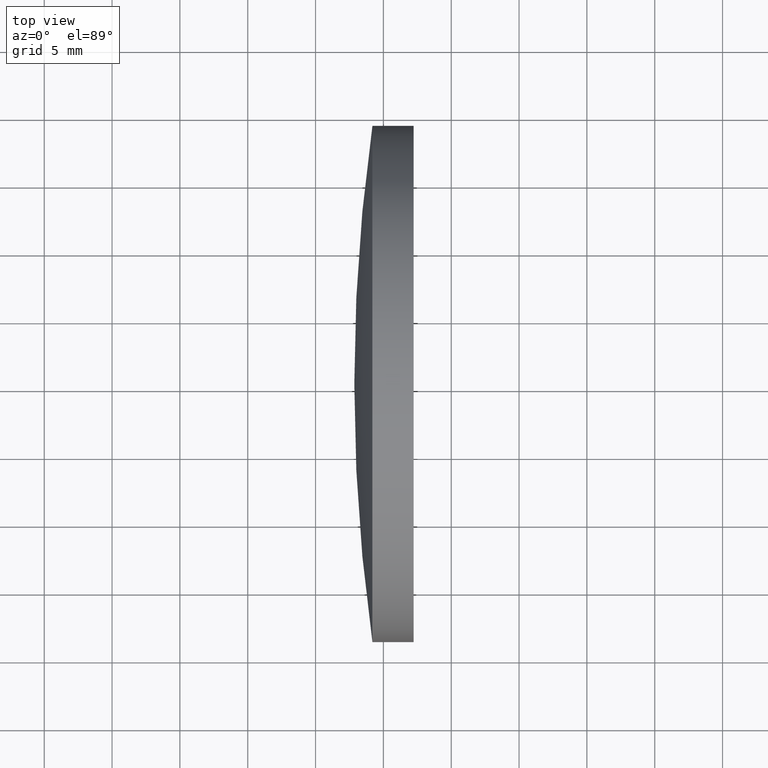
[diagram: clean part render]
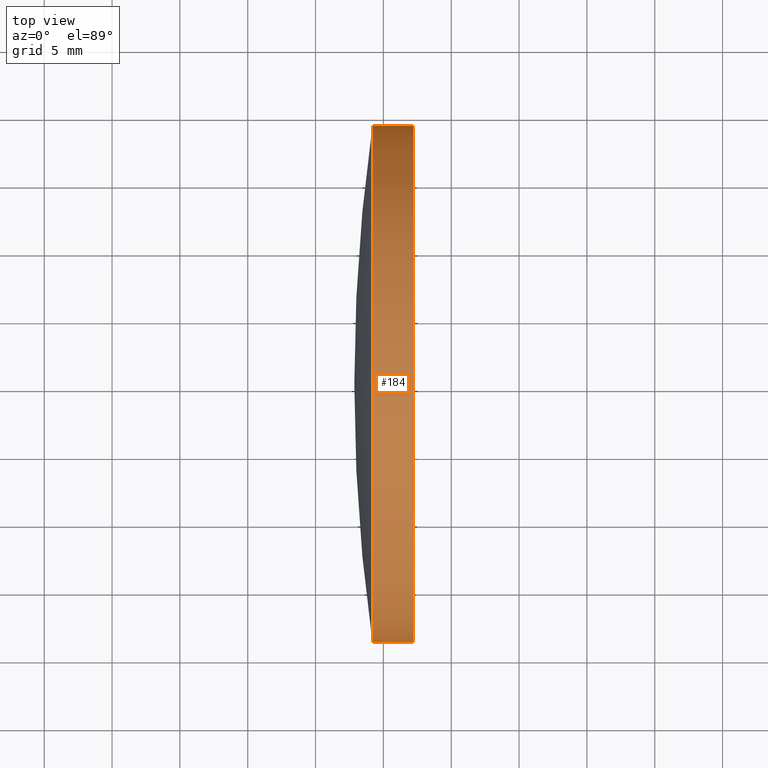
[diagram: same view with one face highlighted and labeled with its STEP entity id]
A machine part, top view. The second image highlights one B-rep face of the part: STEP entity #184.
In plain terms, the highlighted cylindrical surface (partial cylindrical patch) has radius 19.025 mm, axis along (-1, -0, -0).
Its self-contained STEP definition (entity closure, byte-faithful):
#7 = VECTOR ( 'NONE', #172, 1000.000000000000000 ) ;
#16 = DIRECTION ( 'NONE',  ( -1.000000000000000000, -6.937607244762875000E-016, -0.0000000000000000000 ) ) ;
#17 = ORIENTED_EDGE ( 'NONE', *, *, #81, .T. ) ;
#20 = ORIENTED_EDGE ( 'NONE', *, *, #105, .F. ) ;
#33 = EDGE_LOOP ( 'NONE', ( #150, #17, #151, #20 ) ) ;
#45 = AXIS2_PLACEMENT_3D ( 'NONE', #180, #160, #112 ) ;
#51 = CARTESIAN_POINT ( 'NONE',  ( 115.9444912979631700, 65.21684047094032600, 0.0000000000000000000 ) ) ;
#59 = CIRCLE ( 'NONE', #45, 19.02500000000002000 ) ;
#61 = VERTEX_POINT ( 'NONE', #186 ) ;
#65 = CARTESIAN_POINT ( 'NONE',  ( 115.9444912979631500, 84.24184047094033200, 2.329890535377840300E-015 ) ) ;
#71 = VERTEX_POINT ( 'NONE', #120 ) ;
#72 = CARTESIAN_POINT ( 'NONE',  ( 124.1897242847917800, 46.19184047094033500, 0.0000000000000000000 ) ) ;
#74 = DIRECTION ( 'NONE',  ( 7.294500818824946100E-016, -1.000000000000000000, 0.0000000000000000000 ) ) ;
#76 = AXIS2_PLACEMENT_3D ( 'NONE', #126, #16, #74 ) ;
#81 = EDGE_CURVE ( 'NONE', #61, #71, #135, .T. ) ;
#89 = CYLINDRICAL_SURFACE ( 'NONE', #147, 19.02500000000000600 ) ;
#91 = FACE_OUTER_BOUND ( 'NONE', #33, .T. ) ;
#93 = CARTESIAN_POINT ( 'NONE',  ( 115.9444912979631800, 46.19184047094032100, 0.0000000000000000000 ) ) ;
#96 = DIRECTION ( 'NONE',  ( 7.294500818824942100E-016, -1.000000000000000000, 0.0000000000000000000 ) ) ;
#98 = DIRECTION ( 'NONE',  ( -1.000000000000000000, -6.937607244762875000E-016, -0.0000000000000000000 ) ) ;
#105 = EDGE_CURVE ( 'NONE', #140, #124, #114, .T. ) ;
#112 = DIRECTION ( 'NONE',  ( 0.0000000000000000000, -1.000000000000000000, 0.0000000000000000000 ) ) ;
#114 = LINE ( 'NONE', #93, #116 ) ;
#116 = VECTOR ( 'NONE', #189, 1000.000000000000000 ) ;
#120 = CARTESIAN_POINT ( 'NONE',  ( 124.1897242847917500, 84.24184047094033200, 2.329890535377839500E-015 ) ) ;
#124 = VERTEX_POINT ( 'NONE', #72 ) ;
#126 = CARTESIAN_POINT ( 'NONE',  ( 124.1897242847917700, 65.21684047094032600, 0.0000000000000000000 ) ) ;
#135 = LINE ( 'NONE', #65, #7 ) ;
#139 = CARTESIAN_POINT ( 'NONE',  ( 127.2319709531309400, 46.19184047093946800, -2.329890535377901000E-015 ) ) ;
#140 = VERTEX_POINT ( 'NONE', #139 ) ;
#141 = EDGE_CURVE ( 'NONE', #140, #61, #59, .T. ) ;
#142 = EDGE_CURVE ( 'NONE', #124, #71, #162, .T. ) ;
#147 = AXIS2_PLACEMENT_3D ( 'NONE', #51, #98, #96 ) ;
#150 = ORIENTED_EDGE ( 'NONE', *, *, #141, .T. ) ;
#151 = ORIENTED_EDGE ( 'NONE', *, *, #142, .F. ) ;
#160 = DIRECTION ( 'NONE',  ( -1.000000000000000000, -6.937607244762875000E-016, -0.0000000000000000000 ) ) ;
#162 = CIRCLE ( 'NONE', #76, 19.02499999999999500 ) ;
#172 = DIRECTION ( 'NONE',  ( -1.000000000000000000, -6.937607244762875000E-016, -0.0000000000000000000 ) ) ;
#180 = CARTESIAN_POINT ( 'NONE',  ( 127.2319709531308800, 65.21684047094034000, 0.0000000000000000000 ) ) ;
#184 = ADVANCED_FACE ( 'NONE', ( #91 ), #89, .T. ) ;
#186 = CARTESIAN_POINT ( 'NONE',  ( 127.2319709531309400, 84.24184047094084300, 0.0000000000000000000 ) ) ;
#189 = DIRECTION ( 'NONE',  ( -1.000000000000000000, -6.937607244762875000E-016, -0.0000000000000000000 ) ) ;